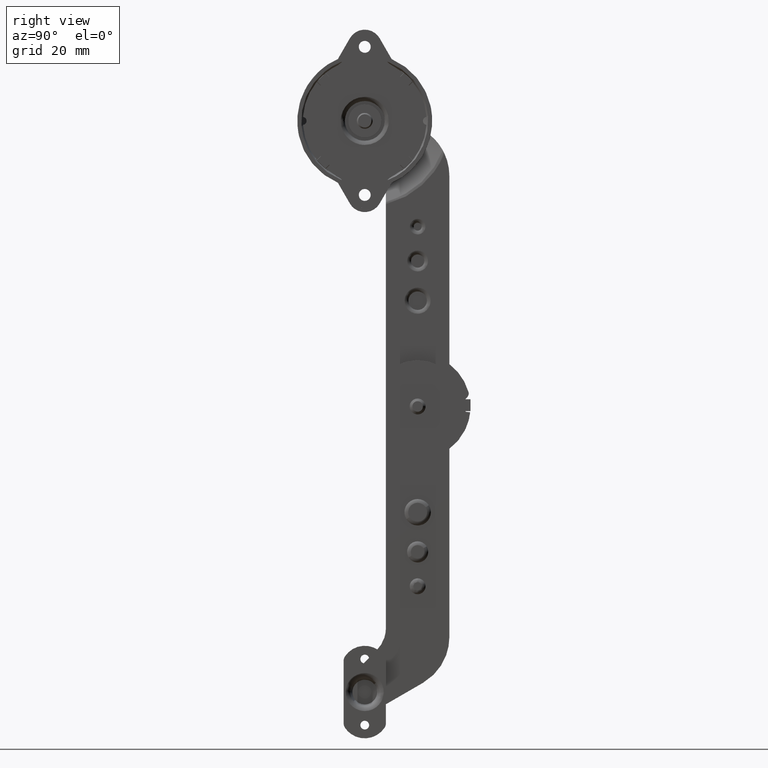
[diagram: clean part render]
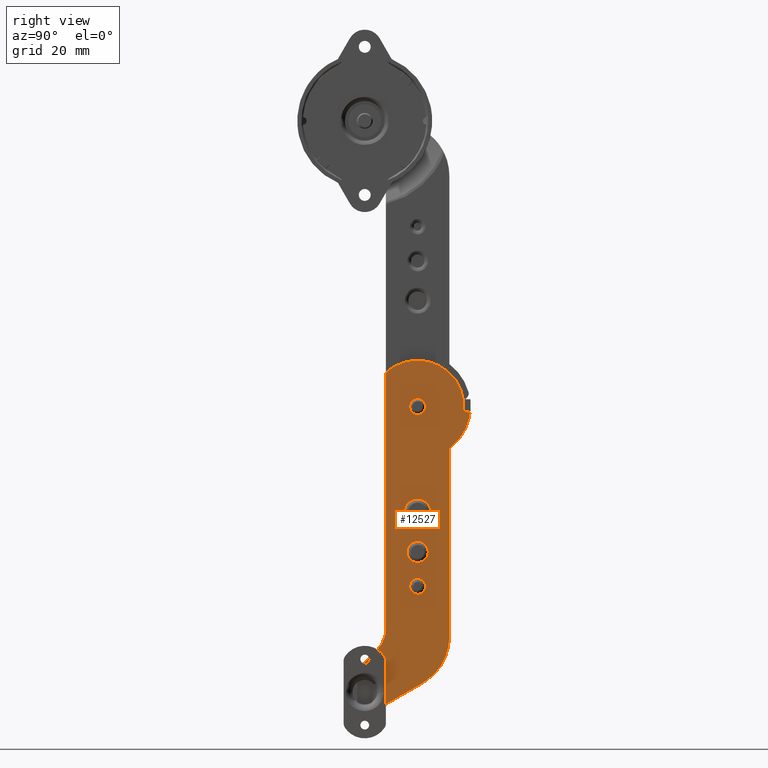
[diagram: same view with one face highlighted and labeled with its STEP entity id]
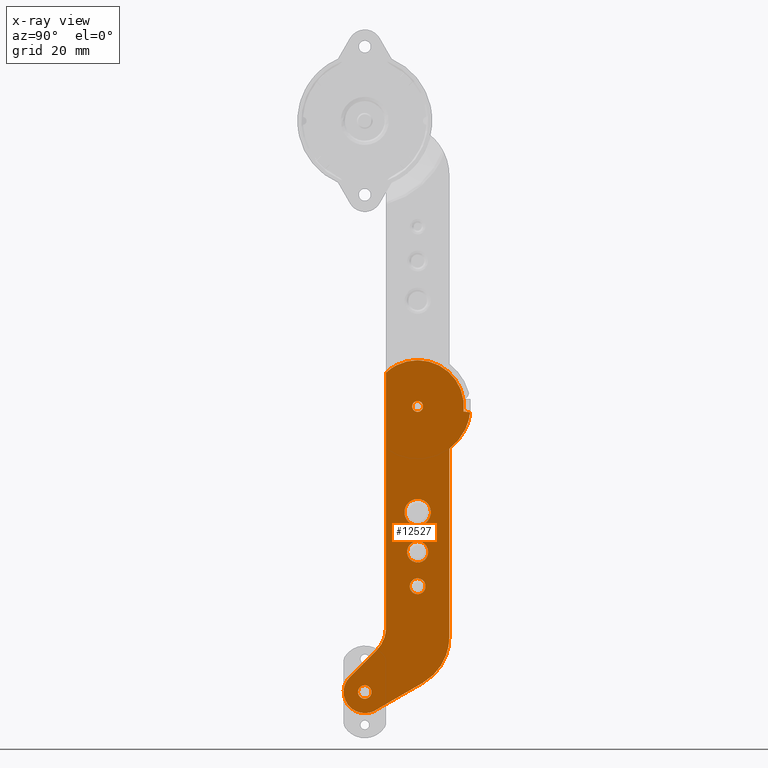
[diagram: x-ray of the same camera — body ghosted, the highlighted face saturated]
A machine part, right view. The second image highlights one B-rep face of the part: STEP entity #12527.
The next image is the same camera in x-ray: the body ghosted, the highlighted face saturated — about 0% of this face is hidden behind the body in this view.
In plain terms, the highlighted face is a freeform B-spline surface patch.
Its self-contained STEP definition (entity closure, byte-faithful):
#10336=CARTESIAN_POINT('',(2.499999999999945,-2.046176336518340,0.125149510076760));
#10337=VERTEX_POINT('',#10336);
#10338=CARTESIAN_POINT('',(2.499999999999945,0.0,-2.049999999999725));
#10339=VERTEX_POINT('',#10338);
#10340=CARTESIAN_POINT('',(2.499999999999945,-2.046176336518341,0.125149510076760));
#10341=CARTESIAN_POINT('',(2.499999999999945,-2.050000000000001,0.062633166783046));
#10342=CARTESIAN_POINT('',(2.499999999999945,-2.050000000000000,2.749960E-013));
#10343=CARTESIAN_POINT('',(2.499999999999945,-2.050000000000001,-2.049999999999725));
#10344=CARTESIAN_POINT('',(2.499999999999945,0.0,-2.049999999999725));
#10352=(BOUNDED_CURVE()B_SPLINE_CURVE(2,(#10340,#10341,#10342,#10343,#10344),.UNSPECIFIED.,.F.,.U.)B_SPLINE_CURVE_WITH_KNOTS((3,2,3),(0.239332961902130,0.250000000000000,0.500000000000000),.UNSPECIFIED.)CURVE()GEOMETRIC_REPRESENTATION_ITEM()RATIONAL_B_SPLINE_CURVE((0.976072040944864,0.987502787505237,1.0,0.707106781186547,1.0))REPRESENTATION_ITEM(''));
#10353=EDGE_CURVE('',#10337,#10339,#10352,.T.);
#10355=CARTESIAN_POINT('',(2.499999999999945,2.046176336518340,-0.125149510076210));
#10356=VERTEX_POINT('',#10355);
#10357=CARTESIAN_POINT('',(2.499999999999945,0.0,-2.049999999999725));
#10358=CARTESIAN_POINT('',(2.499999999999945,1.928447433351420,-2.049999999999725));
#10359=CARTESIAN_POINT('',(2.499999999999945,2.046176336518341,-0.125149510076210));
#10367=(BOUNDED_CURVE()B_SPLINE_CURVE(2,(#10357,#10358,#10359),.UNSPECIFIED.,.F.,.U.)B_SPLINE_CURVE_WITH_KNOTS((3,3),(0.500000000000000,0.739332961902130),.UNSPECIFIED.)CURVE()GEOMETRIC_REPRESENTATION_ITEM()RATIONAL_B_SPLINE_CURVE((1.0,0.719603993681311,0.976072040944864))REPRESENTATION_ITEM(''));
#10368=EDGE_CURVE('',#10339,#10356,#10367,.T.);
#10435=CARTESIAN_POINT('',(2.499999999999945,0.0,2.050000000000275));
#10436=VERTEX_POINT('',#10435);
#10437=CARTESIAN_POINT('',(2.499999999999945,0.0,2.050000000000275));
#10438=CARTESIAN_POINT('',(2.499999999999945,-1.928447433351422,2.050000000000276));
#10439=CARTESIAN_POINT('',(2.499999999999945,-2.046176336518341,0.125149510076760));
#10447=(BOUNDED_CURVE()B_SPLINE_CURVE(2,(#10437,#10438,#10439),.UNSPECIFIED.,.F.,.U.)B_SPLINE_CURVE_WITH_KNOTS((3,3),(0.0,0.239332961902130),.UNSPECIFIED.)CURVE()GEOMETRIC_REPRESENTATION_ITEM()RATIONAL_B_SPLINE_CURVE((1.0,0.719603993681311,0.976072040944864))REPRESENTATION_ITEM(''));
#10448=EDGE_CURVE('',#10436,#10337,#10447,.T.);
#10482=CARTESIAN_POINT('',(2.499999999999945,2.046176336518341,-0.125149510076210));
#10483=CARTESIAN_POINT('',(2.499999999999945,2.050000000000001,-0.062633166782497));
#10484=CARTESIAN_POINT('',(2.499999999999945,2.050000000000000,2.749960E-013));
#10485=CARTESIAN_POINT('',(2.499999999999945,2.050000000000001,2.050000000000275));
#10486=CARTESIAN_POINT('',(2.499999999999945,0.0,2.050000000000275));
#10494=(BOUNDED_CURVE()B_SPLINE_CURVE(2,(#10482,#10483,#10484,#10485,#10486),.UNSPECIFIED.,.F.,.U.)B_SPLINE_CURVE_WITH_KNOTS((3,2,3),(0.739332961902130,0.750000000000000,1.0),.UNSPECIFIED.)CURVE()GEOMETRIC_REPRESENTATION_ITEM()RATIONAL_B_SPLINE_CURVE((0.976072040944864,0.987502787505237,1.0,0.707106781186547,1.0))REPRESENTATION_ITEM(''));
#10495=EDGE_CURVE('',#10356,#10436,#10494,.T.);
#10518=CARTESIAN_POINT('',(2.499999999999550,-22.545244445920400,-107.844326221543000));
#10519=VERTEX_POINT('',#10518);
#10520=CARTESIAN_POINT('',(2.499999999999550,-20.000000710106299,-110.550000000000000));
#10521=VERTEX_POINT('',#10520);
#10522=CARTESIAN_POINT('',(2.499999999999550,-22.545244445920400,-107.844326221543070));
#10523=CARTESIAN_POINT('',(2.499999999999550,-22.550000710106300,-107.922090452263360));
#10524=CARTESIAN_POINT('',(2.499999999999550,-22.550000710106300,-108.0));
#10525=CARTESIAN_POINT('',(2.499999999999550,-22.550000710106303,-110.550000000000000));
#10526=CARTESIAN_POINT('',(2.499999999999550,-20.000000710106299,-110.550000000000000));
#10534=(BOUNDED_CURVE()B_SPLINE_CURVE(2,(#10522,#10523,#10524,#10525,#10526),.UNSPECIFIED.,.F.,.U.)B_SPLINE_CURVE_WITH_KNOTS((3,2,3),(0.239332962062788,0.250000000000000,0.500000000000000),.UNSPECIFIED.)CURVE()GEOMETRIC_REPRESENTATION_ITEM()RATIONAL_B_SPLINE_CURVE((0.976072041289184,0.987502787693459,1.0,0.707106781186548,1.0))REPRESENTATION_ITEM(''));
#10535=EDGE_CURVE('',#10519,#10521,#10534,.T.);
#10537=CARTESIAN_POINT('',(2.499999999999550,-17.454756974292192,-108.155673778456800));
#10538=VERTEX_POINT('',#10537);
#10539=CARTESIAN_POINT('',(2.499999999999550,-20.000000710106299,-110.550000000000000));
#10540=CARTESIAN_POINT('',(2.499999999999549,-17.601200241992252,-110.550000000000010));
#10541=CARTESIAN_POINT('',(2.499999999999549,-17.454756974292188,-108.155673778456770));
#10549=(BOUNDED_CURVE()B_SPLINE_CURVE(2,(#10539,#10540,#10541),.UNSPECIFIED.,.F.,.U.)B_SPLINE_CURVE_WITH_KNOTS((3,3),(0.500000000000000,0.739332962062803),.UNSPECIFIED.)CURVE()GEOMETRIC_REPRESENTATION_ITEM()RATIONAL_B_SPLINE_CURVE((1.0,0.719603993493071,0.976072041289216))REPRESENTATION_ITEM(''));
#10550=EDGE_CURVE('',#10521,#10538,#10549,.T.);
#10617=CARTESIAN_POINT('',(2.499999999999550,-20.000000710106299,-105.450000000000000));
#10618=VERTEX_POINT('',#10617);
#10619=CARTESIAN_POINT('',(2.499999999999550,-20.000000710106299,-105.450000000000000));
#10620=CARTESIAN_POINT('',(2.499999999999550,-22.398801178220157,-105.450000000000030));
#10621=CARTESIAN_POINT('',(2.499999999999549,-22.545244445920403,-107.844326221543060));
#10629=(BOUNDED_CURVE()B_SPLINE_CURVE(2,(#10619,#10620,#10621),.UNSPECIFIED.,.F.,.U.)B_SPLINE_CURVE_WITH_KNOTS((3,3),(0.0,0.239332962062789),.UNSPECIFIED.)CURVE()GEOMETRIC_REPRESENTATION_ITEM()RATIONAL_B_SPLINE_CURVE((1.0,0.719603993493088,0.976072041289186))REPRESENTATION_ITEM(''));
#10630=EDGE_CURVE('',#10618,#10519,#10629,.T.);
#10664=CARTESIAN_POINT('',(2.499999999999550,-17.454756974292188,-108.155673778456740));
#10665=CARTESIAN_POINT('',(2.499999999999550,-17.450000710106305,-108.077909547736570));
#10666=CARTESIAN_POINT('',(2.499999999999550,-17.450000710106298,-108.0));
#10667=CARTESIAN_POINT('',(2.499999999999550,-17.450000710106305,-105.450000000000000));
#10668=CARTESIAN_POINT('',(2.499999999999550,-20.000000710106299,-105.450000000000000));
#10676=(BOUNDED_CURVE()B_SPLINE_CURVE(2,(#10664,#10665,#10666,#10667,#10668),.UNSPECIFIED.,.F.,.U.)B_SPLINE_CURVE_WITH_KNOTS((3,2,3),(0.739332962062802,0.750000000000000,1.0),.UNSPECIFIED.)CURVE()GEOMETRIC_REPRESENTATION_ITEM()RATIONAL_B_SPLINE_CURVE((0.976072041289215,0.987502787693476,1.0,0.707106781186548,1.0))REPRESENTATION_ITEM(''));
#10677=EDGE_CURVE('',#10538,#10618,#10676,.T.);
#11388=CARTESIAN_POINT('',(2.500000000531471,-3.403977926910756,-57.100698519642222));
#11389=VERTEX_POINT('',#11388);
#11403=CARTESIAN_POINT('',(2.499999999999770,1.136868E-013,-58.999999999997748));
#11404=VERTEX_POINT('',#11403);
#11405=CARTESIAN_POINT('',(2.499999999999770,1.136868E-013,-58.999999999997748));
#11406=CARTESIAN_POINT('',(2.500000000265620,-2.231861099787260,-58.999999999910493));
#11407=CARTESIAN_POINT('',(2.500000000531471,-3.403977926910756,-57.100698519642215));
#11415=(BOUNDED_CURVE()B_SPLINE_CURVE(2,(#11405,#11406,#11407),.UNSPECIFIED.,.F.,.U.)B_SPLINE_CURVE_WITH_KNOTS((3,3),(0.500000000000000,0.660237044389414),.UNSPECIFIED.)CURVE()GEOMETRIC_REPRESENTATION_ITEM()RATIONAL_B_SPLINE_CURVE((1.0,0.812270625182521,0.865190851691645))REPRESENTATION_ITEM(''));
#11416=EDGE_CURVE('',#11404,#11389,#11415,.T.);
#11418=CARTESIAN_POINT('',(2.500000000531472,3.403977926910988,-52.899301480357778));
#11419=VERTEX_POINT('',#11418);
#11420=CARTESIAN_POINT('',(2.500000000531471,3.403977926910988,-52.899301480357792));
#11421=CARTESIAN_POINT('',(2.500000000489385,3.999999999737446,-53.865097362430973));
#11422=CARTESIAN_POINT('',(2.500000000413956,3.999999999777565,-55.000000000135948));
#11423=CARTESIAN_POINT('',(2.500000000148106,3.999999999918963,-59.000000000046427));
#11424=CARTESIAN_POINT('',(2.499999999999770,1.136868E-013,-58.999999999997748));
#11432=(BOUNDED_CURVE()B_SPLINE_CURVE(2,(#11420,#11421,#11422,#11423,#11424),.UNSPECIFIED.,.F.,.U.)B_SPLINE_CURVE_WITH_KNOTS((3,2,3),(0.160237044389415,0.250000000000000,0.500000000000000),.UNSPECIFIED.)CURVE()GEOMETRIC_REPRESENTATION_ITEM()RATIONAL_B_SPLINE_CURVE((0.865190851691646,0.894836156004026,1.0,0.707106781186547,1.0))REPRESENTATION_ITEM(''));
#11433=EDGE_CURVE('',#11419,#11404,#11432,.T.);
#11528=CARTESIAN_POINT('',(2.499999999999754,1.136868E-013,-51.000000000002252));
#11529=VERTEX_POINT('',#11528);
#11530=CARTESIAN_POINT('',(2.499999999999754,1.136868E-013,-51.000000000002252));
#11531=CARTESIAN_POINT('',(2.500000000265613,2.231861099787492,-51.000000000089507));
#11532=CARTESIAN_POINT('',(2.500000000531472,3.403977926910988,-52.899301480357785));
#11540=(BOUNDED_CURVE()B_SPLINE_CURVE(2,(#11530,#11531,#11532),.UNSPECIFIED.,.F.,.U.)B_SPLINE_CURVE_WITH_KNOTS((3,3),(0.0,0.160237044389415),.UNSPECIFIED.)CURVE()GEOMETRIC_REPRESENTATION_ITEM()RATIONAL_B_SPLINE_CURVE((1.0,0.812270625182521,0.865190851691646))REPRESENTATION_ITEM(''));
#11541=EDGE_CURVE('',#11529,#11419,#11540,.T.);
#11543=CARTESIAN_POINT('',(2.500000000531471,-3.403977926910756,-57.100698519642215));
#11544=CARTESIAN_POINT('',(2.500000000489383,-3.999999999737216,-56.134902637569006));
#11545=CARTESIAN_POINT('',(2.500000000413952,-3.999999999777335,-54.999999999864038));
#11546=CARTESIAN_POINT('',(2.500000000148094,-3.999999999918735,-50.999999999953559));
#11547=CARTESIAN_POINT('',(2.499999999999754,1.136868E-013,-51.000000000002252));
#11555=(BOUNDED_CURVE()B_SPLINE_CURVE(2,(#11543,#11544,#11545,#11546,#11547),.UNSPECIFIED.,.F.,.U.)B_SPLINE_CURVE_WITH_KNOTS((3,2,3),(0.660237044389414,0.750000000000000,1.0),.UNSPECIFIED.)CURVE()GEOMETRIC_REPRESENTATION_ITEM()RATIONAL_B_SPLINE_CURVE((0.865190851691645,0.894836156004026,1.0,0.707106781186547,1.0))REPRESENTATION_ITEM(''));
#11556=EDGE_CURVE('',#11389,#11529,#11555,.T.);
#11608=CARTESIAN_POINT('',(2.500000000777912,-4.254972408391639,-42.625873149823697));
#11609=VERTEX_POINT('',#11608);
#11623=CARTESIAN_POINT('',(2.499999999999826,1.136868E-013,-45.000000000000320));
#11624=VERTEX_POINT('',#11623);
#11625=CARTESIAN_POINT('',(2.499999999999826,1.136868E-013,-45.000000000000320));
#11626=CARTESIAN_POINT('',(2.500000000388869,-2.789826374469521,-44.999999999872635));
#11627=CARTESIAN_POINT('',(2.500000000777912,-4.254972408391640,-42.625873149823697));
#11635=(BOUNDED_CURVE()B_SPLINE_CURVE(2,(#11625,#11626,#11627),.UNSPECIFIED.,.F.,.U.)B_SPLINE_CURVE_WITH_KNOTS((3,3),(0.500000000000000,0.660237044378397),.UNSPECIFIED.)CURVE()GEOMETRIC_REPRESENTATION_ITEM()RATIONAL_B_SPLINE_CURVE((1.0,0.812270625195429,0.865190851684368))REPRESENTATION_ITEM(''));
#11636=EDGE_CURVE('',#11624,#11609,#11635,.T.);
#11638=CARTESIAN_POINT('',(2.500000000777916,4.254972408391870,-37.374126850176310));
#11639=VERTEX_POINT('',#11638);
#11640=CARTESIAN_POINT('',(2.500000000777916,4.254972408391870,-37.374126850176317));
#11641=CARTESIAN_POINT('',(2.500000000716326,4.999999999619346,-38.581371702877540));
#11642=CARTESIAN_POINT('',(2.500000000605944,4.999999999678056,-40.000000000198952));
#11643=CARTESIAN_POINT('',(2.500000000216900,4.999999999884977,-45.000000000071580));
#11644=CARTESIAN_POINT('',(2.499999999999826,1.136868E-013,-45.000000000000320));
#11652=(BOUNDED_CURVE()B_SPLINE_CURVE(2,(#11640,#11641,#11642,#11643,#11644),.UNSPECIFIED.,.F.,.U.)B_SPLINE_CURVE_WITH_KNOTS((3,2,3),(0.160237044378397,0.250000000000000,0.500000000000000),.UNSPECIFIED.)CURVE()GEOMETRIC_REPRESENTATION_ITEM()RATIONAL_B_SPLINE_CURVE((0.865190851684368,0.894836155991118,1.0,0.707106781186547,1.0))REPRESENTATION_ITEM(''));
#11653=EDGE_CURVE('',#11639,#11624,#11652,.T.);
#11748=CARTESIAN_POINT('',(2.499999999999813,1.136868E-013,-34.999999999999680));
#11749=VERTEX_POINT('',#11748);
#11750=CARTESIAN_POINT('',(2.499999999999813,1.136868E-013,-34.999999999999680));
#11751=CARTESIAN_POINT('',(2.500000000388864,2.789826374469753,-35.000000000127379));
#11752=CARTESIAN_POINT('',(2.500000000777916,4.254972408391870,-37.374126850176317));
#11760=(BOUNDED_CURVE()B_SPLINE_CURVE(2,(#11750,#11751,#11752),.UNSPECIFIED.,.F.,.U.)B_SPLINE_CURVE_WITH_KNOTS((3,3),(0.0,0.160237044378397),.UNSPECIFIED.)CURVE()GEOMETRIC_REPRESENTATION_ITEM()RATIONAL_B_SPLINE_CURVE((1.0,0.812270625195429,0.865190851684368))REPRESENTATION_ITEM(''));
#11761=EDGE_CURVE('',#11749,#11639,#11760,.T.);
#11763=CARTESIAN_POINT('',(2.500000000777912,-4.254972408391640,-42.625873149823697));
#11764=CARTESIAN_POINT('',(2.500000000716322,-4.999999999619122,-41.418628297122467));
#11765=CARTESIAN_POINT('',(2.500000000605939,-4.999999999677830,-39.999999999801048));
#11766=CARTESIAN_POINT('',(2.500000000216890,-4.999999999884751,-34.999999999928441));
#11767=CARTESIAN_POINT('',(2.499999999999813,1.136868E-013,-34.999999999999680));
#11775=(BOUNDED_CURVE()B_SPLINE_CURVE(2,(#11763,#11764,#11765,#11766,#11767),.UNSPECIFIED.,.F.,.U.)B_SPLINE_CURVE_WITH_KNOTS((3,2,3),(0.660237044378397,0.750000000000000,1.0),.UNSPECIFIED.)CURVE()GEOMETRIC_REPRESENTATION_ITEM()RATIONAL_B_SPLINE_CURVE((0.865190851684368,0.894836155991118,1.0,0.707106781186547,1.0))REPRESENTATION_ITEM(''));
#11776=EDGE_CURVE('',#11609,#11749,#11775,.T.);
#11827=CARTESIAN_POINT('',(2.500000000023890,1.137045E-013,-70.999999999982791));
#11828=VERTEX_POINT('',#11827);
#11844=CARTESIAN_POINT('',(2.500000000011792,1.136957E-013,-65.000000000009663));
#11845=VERTEX_POINT('',#11844);
#11846=CARTESIAN_POINT('',(2.500000000011792,1.136957E-013,-65.000000000009663));
#11847=CARTESIAN_POINT('',(2.500000000011791,0.343614450023960,-64.999803479250730));
#11848=CARTESIAN_POINT('',(2.500000000012049,1.079888778450685,-65.127712918255313));
#11849=CARTESIAN_POINT('',(2.500000000013159,2.002696263716043,-65.680640008847647));
#11850=CARTESIAN_POINT('',(2.500000000014844,2.670553865572012,-66.515422437584590));
#11851=CARTESIAN_POINT('',(2.500000000016597,2.980945293244332,-67.383114034496813));
#11852=CARTESIAN_POINT('',(2.500000000018391,3.024531894586432,-68.272331425574322));
#11853=CARTESIAN_POINT('',(2.500000000019959,2.850597206989792,-69.046925990516144));
#11854=CARTESIAN_POINT('',(2.500000000021571,2.419365091875315,-69.854080550184548));
#11855=CARTESIAN_POINT('',(2.500000000022741,1.829876043513844,-70.429268708088287));
#11856=CARTESIAN_POINT('',(2.500000000023658,0.981424438398030,-70.882616590659936));
#11857=CARTESIAN_POINT('',(2.500000000023887,0.392770054141340,-71.000416167223335));
#11858=CARTESIAN_POINT('',(2.500000000023890,1.137045E-013,-70.999999999982791));
#11859=B_SPLINE_CURVE_WITH_KNOTS('',3,(#11846,#11847,#11848,#11849,#11850,#11851,#11852,#11853,#11854,#11855,#11856,#11857,#11858),.UNSPECIFIED.,.F.,.U.,(4,1,1,1,1,1,1,1,1,1,4),(0.000001790267598,1.030838436004583,2.208992713647458,3.166233573175864,4.197149054604151,4.933347062868521,5.816994220949441,6.553294956560801,7.657867175381641,8.246915768972949,9.425014467606447),.UNSPECIFIED.);
#11860=EDGE_CURVE('',#11845,#11828,#11859,.T.);
#11958=CARTESIAN_POINT('',(2.500000000023890,1.137045E-013,-70.999999999982791));
#11959=CARTESIAN_POINT('',(2.500000000023881,-0.392731435119866,-71.000419596528147));
#11960=CARTESIAN_POINT('',(2.500000000023620,-1.104192342459567,-70.858187685551727));
#11961=CARTESIAN_POINT('',(2.500000000022568,-1.929517072639101,-70.349623113977628));
#11962=CARTESIAN_POINT('',(2.500000000021182,-2.560736792504148,-69.653283037406041));
#11963=CARTESIAN_POINT('',(2.500000000019442,-2.955806136329146,-68.791006399415821));
#11964=CARTESIAN_POINT('',(2.500000000017471,-3.038777890013104,-67.825094975053474));
#11965=CARTESIAN_POINT('',(2.500000000015887,-2.869405023913335,-67.025506133169955));
#11966=CARTESIAN_POINT('',(2.500000000014557,-2.555228713485376,-66.382009073562244));
#11967=CARTESIAN_POINT('',(2.500000000013217,-2.015499221785479,-65.706643239356538));
#11968=CARTESIAN_POINT('',(2.500000000012121,-1.153469423674687,-65.146182101296617));
#11969=CARTESIAN_POINT('',(2.500000000011776,-0.368123273137637,-64.999769469854954));
#11970=CARTESIAN_POINT('',(2.500000000011792,1.136957E-013,-65.000000000009663));
#11971=B_SPLINE_CURVE_WITH_KNOTS('',3,(#11958,#11959,#11960,#11961,#11962,#11963,#11964,#11965,#11966,#11967,#11968,#11969,#11970),.UNSPECIFIED.,.F.,.U.,(4,1,1,1,1,1,1,1,1,1,4),(0.000001790263562,1.178061172647386,2.135343522829635,2.871745702415700,3.976240475474952,4.933347062872580,5.743253955572921,6.406058932453882,7.068766472408171,8.320633919791264,9.425014467606452),.UNSPECIFIED.);
#11972=EDGE_CURVE('',#11828,#11845,#11971,.T.);
#12052=CARTESIAN_POINT('',(2.499999999999570,-25.500002681093001,-102.190527518959200));
#12053=VERTEX_POINT('',#12052);
#12054=CARTESIAN_POINT('',(2.499999999999605,-15.514717999999800,-92.205243000000010));
#12055=VERTEX_POINT('',#12054);
#12056=CARTESIAN_POINT('',(2.499999999999570,-25.500002681093001,-102.190527518959200));
#12057=CARTESIAN_POINT('',(2.499999999999605,-15.514717999999800,-92.205243000000010));
#12058=QUASI_UNIFORM_CURVE('',1,(#12056,#12057),.UNSPECIFIED.,.F.,.U.);
#12059=EDGE_CURVE('',#12053,#12055,#12058,.T.);
#12101=CARTESIAN_POINT('',(2.499999999999525,-15.995391579790249,-114.925540513258200));
#12102=VERTEX_POINT('',#12101);
#12103=CARTESIAN_POINT('',(2.499999999999570,-25.500002681093001,-102.190527518959200));
#12104=CARTESIAN_POINT('',(2.499999999999549,-26.248795592301668,-102.897855546948090));
#12105=CARTESIAN_POINT('',(2.499999999999550,-27.143132982824529,-104.154721422266310));
#12106=CARTESIAN_POINT('',(2.499999999999552,-27.884525716582790,-106.279931617185600));
#12107=CARTESIAN_POINT('',(2.499999999999544,-28.110168426008268,-108.346654915020690));
#12108=CARTESIAN_POINT('',(2.499999999999562,-27.722595081060341,-110.396239577093990));
#12109=CARTESIAN_POINT('',(2.499999999999536,-26.950361448088529,-112.049719425465800));
#12110=CARTESIAN_POINT('',(2.499999999999549,-26.104027827480550,-113.239199352830790));
#12111=CARTESIAN_POINT('',(2.499999999999556,-24.882128945983730,-114.425746939049300));
#12112=CARTESIAN_POINT('',(2.499999999999548,-23.416826540829401,-115.311110164708500));
#12113=CARTESIAN_POINT('',(2.499999999999551,-21.797882736530831,-115.840640150100200));
#12114=CARTESIAN_POINT('',(2.499999999999552,-20.290854755145180,-116.044628917469790));
#12115=CARTESIAN_POINT('',(2.499999999999544,-18.284602330509930,-115.927344882431300));
#12116=CARTESIAN_POINT('',(2.499999999999564,-16.834178947904132,-115.411435199304190));
#12117=CARTESIAN_POINT('',(2.499999999999525,-15.995391579790249,-114.925540513258200));
#12118=B_SPLINE_CURVE_WITH_KNOTS('',3,(#12103,#12104,#12105,#12106,#12107,#12108,#12109,#12110,#12111,#12112,#12113,#12114,#12115,#12116,#12117),.UNSPECIFIED.,.F.,.U.,(4,1,1,1,1,1,1,1,1,1,1,1,4),(0.000000684621973,3.089550285337253,4.543534944855740,6.724492857172315,9.268979773266842,10.722931894663891,12.176663306976179,13.630601675460751,15.811533050000170,17.265527542777260,18.719497507838231,20.355250363916081,23.263024108393349),.UNSPECIFIED.);
#12119=EDGE_CURVE('',#12053,#12102,#12118,.T.);
#12155=CARTESIAN_POINT('',(2.499999999999560,2.011521050524420,-104.513265283146200));
#12156=VERTEX_POINT('',#12155);
#12157=CARTESIAN_POINT('',(2.499999999999560,2.011521050524420,-104.513265283146200));
#12158=CARTESIAN_POINT('',(2.499999999999525,-15.995391579790249,-114.925540513258200));
#12159=QUASI_UNIFORM_CURVE('',1,(#12157,#12158),.UNSPECIFIED.,.F.,.U.);
#12160=EDGE_CURVE('',#12156,#12102,#12159,.T.);
#12192=CARTESIAN_POINT('',(2.499999999999625,12.000000000000400,-87.199414000000004));
#12193=VERTEX_POINT('',#12192);
#12194=CARTESIAN_POINT('',(2.499999999999625,2.011521050524483,-104.513265283146300));
#12195=CARTESIAN_POINT('',(2.499999999999624,12.000000000000115,-98.737550473655190));
#12196=CARTESIAN_POINT('',(2.499999999999625,12.000000000000110,-87.199414000000004));
#12204=(BOUNDED_CURVE()B_SPLINE_CURVE(2,(#12194,#12195,#12196),.UNSPECIFIED.,.F.,.U.)CURVE()GEOMETRIC_REPRESENTATION_ITEM()QUASI_UNIFORM_CURVE()RATIONAL_B_SPLINE_CURVE((1.0,0.866191679862552,1.0))REPRESENTATION_ITEM(''));
#12205=EDGE_CURVE('',#12156,#12193,#12204,.T.);
#12236=CARTESIAN_POINT('',(2.499999999999890,12.000000000000400,-15.999999999999501));
#12237=VERTEX_POINT('',#12236);
#12238=CARTESIAN_POINT('',(2.499999999999890,12.000000000000400,-15.999999999999501));
#12239=CARTESIAN_POINT('',(2.499999999999625,12.000000000000400,-87.199414000000004));
#12240=QUASI_UNIFORM_CURVE('',1,(#12238,#12239),.UNSPECIFIED.,.F.,.U.);
#12241=EDGE_CURVE('',#12237,#12193,#12240,.T.);
#12273=CARTESIAN_POINT('',(2.499999999999940,19.878632000000248,-2.200000000000110));
#12274=VERTEX_POINT('',#12273);
#12275=CARTESIAN_POINT('',(2.499999999999945,12.000000000000400,-15.999999999999510));
#12276=CARTESIAN_POINT('',(2.499999999999945,18.926269678147609,-10.805297741388911));
#12277=CARTESIAN_POINT('',(2.499999999999945,19.878631746760622,-2.199999971973684));
#12285=(BOUNDED_CURVE()B_SPLINE_CURVE(2,(#12275,#12276,#12277),.UNSPECIFIED.,.F.,.U.)CURVE()GEOMETRIC_REPRESENTATION_ITEM()QUASI_UNIFORM_CURVE()RATIONAL_B_SPLINE_CURVE((1.0,0.917703370180634,1.0))REPRESENTATION_ITEM(''));
#12286=EDGE_CURVE('',#12237,#12274,#12285,.T.);
#12317=CARTESIAN_POINT('',(2.499999999999940,17.393802778415449,-1.924999975476750));
#12318=VERTEX_POINT('',#12317);
#12319=CARTESIAN_POINT('',(2.499999999999940,17.393802778415449,-1.924999975476750));
#12320=CARTESIAN_POINT('',(2.499999999999940,19.878632000000248,-2.200000000000110));
#12321=QUASI_UNIFORM_CURVE('',1,(#12319,#12320),.UNSPECIFIED.,.F.,.U.);
#12322=EDGE_CURVE('',#12318,#12274,#12321,.T.);
#12358=CARTESIAN_POINT('',(2.500000000000000,-11.999999999999719,12.737739202857540));
#12359=VERTEX_POINT('',#12358);
#12360=CARTESIAN_POINT('',(2.499999999999940,17.393802778415449,-1.924999975476750));
#12361=CARTESIAN_POINT('',(2.499999999999946,17.552937204072691,-0.490226883937652));
#12362=CARTESIAN_POINT('',(2.499999999999947,17.522153386839619,1.747380019496832));
#12363=CARTESIAN_POINT('',(2.499999999999943,16.879860808953421,4.853455039955874));
#12364=CARTESIAN_POINT('',(2.499999999999941,15.882975330173410,7.573148285576170));
#12365=CARTESIAN_POINT('',(2.499999999999970,14.325522247726679,10.217600312697041));
#12366=CARTESIAN_POINT('',(2.499999999999929,12.466980056355951,12.366252019793221));
#12367=CARTESIAN_POINT('',(2.499999999999926,10.324744184590630,14.226187763156959));
#12368=CARTESIAN_POINT('',(2.500000000000006,7.950892424421772,15.691841124057850));
#12369=CARTESIAN_POINT('',(2.499999999999899,4.948178483301177,16.880972216717659));
#12370=CARTESIAN_POINT('',(2.499999999999966,2.159675896214139,17.449069120431041));
#12371=CARTESIAN_POINT('',(2.499999999999938,-1.010297655683329,17.558145584045072));
#12372=CARTESIAN_POINT('',(2.499999999999951,-4.273264726634153,17.108816442791191));
#12373=CARTESIAN_POINT('',(2.499999999999942,-8.259377799293043,15.648858895432991));
#12374=CARTESIAN_POINT('',(2.499999999999933,-10.747706138783490,13.918605070718799));
#12375=CARTESIAN_POINT('',(2.500000000000000,-11.999999999999719,12.737739202857540));
#12376=B_SPLINE_CURVE_WITH_KNOTS('',3,(#12360,#12361,#12362,#12363,#12364,#12365,#12366,#12367,#12368,#12369,#12370,#12371,#12372,#12373,#12374,#12375),.UNSPECIFIED.,.F.,.U.,(4,1,1,1,1,1,1,1,1,1,1,1,1,4),(0.000000527674302,4.330611809085795,6.662549665103875,9.494211281402698,12.992137974233559,15.823785883833880,17.989177317936921,21.486789467954871,24.151854054381261,27.649840321871579,29.981755726639971,33.646210493590090,37.477284340364257,42.640730196449432),.UNSPECIFIED.);
#12377=EDGE_CURVE('',#12318,#12359,#12376,.T.);
#12414=CARTESIAN_POINT('',(2.499999999999640,-12.0,-83.719961999999896));
#12415=VERTEX_POINT('',#12414);
#12416=CARTESIAN_POINT('',(2.499999999999640,-12.0,-83.719961999999896));
#12417=CARTESIAN_POINT('',(2.500000000000000,-11.999999999999719,12.737739202857540));
#12418=QUASI_UNIFORM_CURVE('',1,(#12416,#12417),.UNSPECIFIED.,.F.,.U.);
#12419=EDGE_CURVE('',#12415,#12359,#12418,.T.);
#12451=CARTESIAN_POINT('',(2.499999999999605,-15.514717999999800,-92.205243000000010));
#12452=CARTESIAN_POINT('',(2.499999999999641,-11.999999999999998,-88.690524334263458));
#12453=CARTESIAN_POINT('',(2.499999999999640,-12.0,-83.719961999999896));
#12461=(BOUNDED_CURVE()B_SPLINE_CURVE(2,(#12451,#12452,#12453),.UNSPECIFIED.,.F.,.U.)CURVE()GEOMETRIC_REPRESENTATION_ITEM()QUASI_UNIFORM_CURVE()RATIONAL_B_SPLINE_CURVE((1.0,0.923879543786206,1.0))REPRESENTATION_ITEM(''));
#12462=EDGE_CURVE('',#12055,#12415,#12461,.T.);
#12482=CARTESIAN_POINT('',(2.499999999999970,-30.385684334189911,-122.661462851269700));
#12483=CARTESIAN_POINT('',(2.499999999999970,22.269892399136729,-122.661462851269700));
#12484=CARTESIAN_POINT('',(2.499999999999970,-30.385684334189911,24.162453789629950));
#12485=CARTESIAN_POINT('',(2.499999999999970,22.269892399136729,24.162453789629950));
#12486=B_SPLINE_SURFACE_WITH_KNOTS('',1,1,((#12482,#12484),(#12483,#12485)),.UNSPECIFIED.,.F.,.F.,.U.,(2,2),(2,2),(0.0,52.655576733326640),(0.0,146.823916640899600),.UNSPECIFIED.);
#12487=ORIENTED_EDGE('',*,*,#12462,.F.);
#12488=ORIENTED_EDGE('',*,*,#12059,.F.);
#12489=ORIENTED_EDGE('',*,*,#12119,.T.);
#12490=ORIENTED_EDGE('',*,*,#12160,.F.);
#12491=ORIENTED_EDGE('',*,*,#12205,.T.);
#12492=ORIENTED_EDGE('',*,*,#12241,.F.);
#12493=ORIENTED_EDGE('',*,*,#12286,.T.);
#12494=ORIENTED_EDGE('',*,*,#12322,.F.);
#12495=ORIENTED_EDGE('',*,*,#12377,.T.);
#12496=ORIENTED_EDGE('',*,*,#12419,.F.);
#12497=EDGE_LOOP('',(#12487,#12488,#12489,#12490,#12491,#12492,#12493,#12494,#12495,#12496));
#12498=FACE_OUTER_BOUND('',#12497,.T.);
#12499=ORIENTED_EDGE('',*,*,#11860,.T.);
#12500=ORIENTED_EDGE('',*,*,#11972,.T.);
#12501=EDGE_LOOP('',(#12499,#12500));
#12502=FACE_BOUND('',#12501,.T.);
#12503=ORIENTED_EDGE('',*,*,#11761,.T.);
#12504=ORIENTED_EDGE('',*,*,#11653,.T.);
#12505=ORIENTED_EDGE('',*,*,#11636,.T.);
#12506=ORIENTED_EDGE('',*,*,#11776,.T.);
#12507=EDGE_LOOP('',(#12503,#12504,#12505,#12506));
#12508=FACE_BOUND('',#12507,.T.);
#12509=ORIENTED_EDGE('',*,*,#11541,.T.);
#12510=ORIENTED_EDGE('',*,*,#11433,.T.);
#12511=ORIENTED_EDGE('',*,*,#11416,.T.);
#12512=ORIENTED_EDGE('',*,*,#11556,.T.);
#12513=EDGE_LOOP('',(#12509,#12510,#12511,#12512));
#12514=FACE_BOUND('',#12513,.T.);
#12515=ORIENTED_EDGE('',*,*,#10550,.F.);
#12516=ORIENTED_EDGE('',*,*,#10535,.F.);
#12517=ORIENTED_EDGE('',*,*,#10630,.F.);
#12518=ORIENTED_EDGE('',*,*,#10677,.F.);
#12519=EDGE_LOOP('',(#12515,#12516,#12517,#12518));
#12520=FACE_BOUND('',#12519,.T.);
#12521=ORIENTED_EDGE('',*,*,#10368,.F.);
#12522=ORIENTED_EDGE('',*,*,#10353,.F.);
#12523=ORIENTED_EDGE('',*,*,#10448,.F.);
#12524=ORIENTED_EDGE('',*,*,#10495,.F.);
#12525=EDGE_LOOP('',(#12521,#12522,#12523,#12524));
#12526=FACE_BOUND('',#12525,.T.);
#12527=ADVANCED_FACE('',(#12498,#12502,#12508,#12514,#12520,#12526),#12486,.T.);